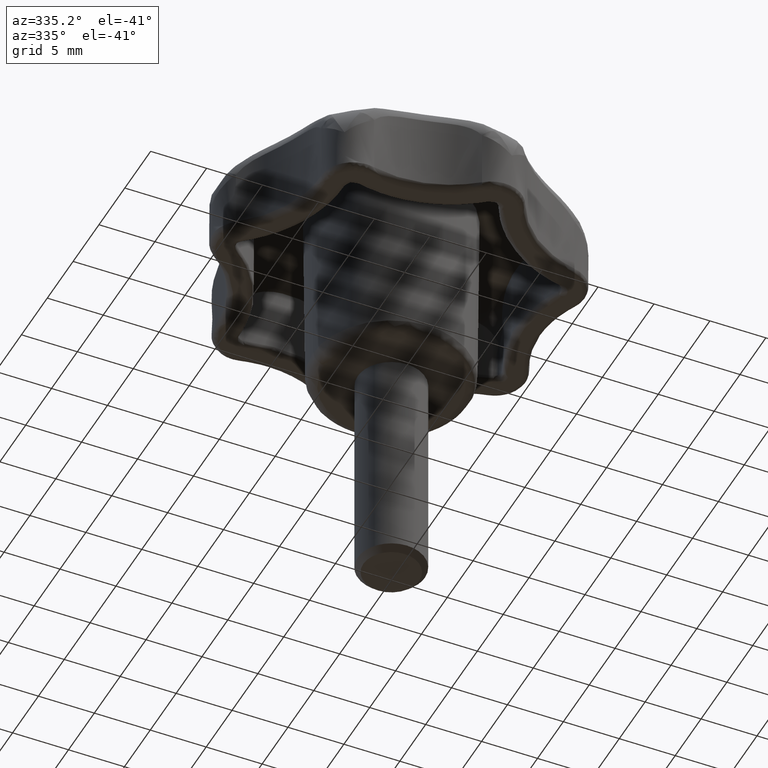
[diagram: clean part render]
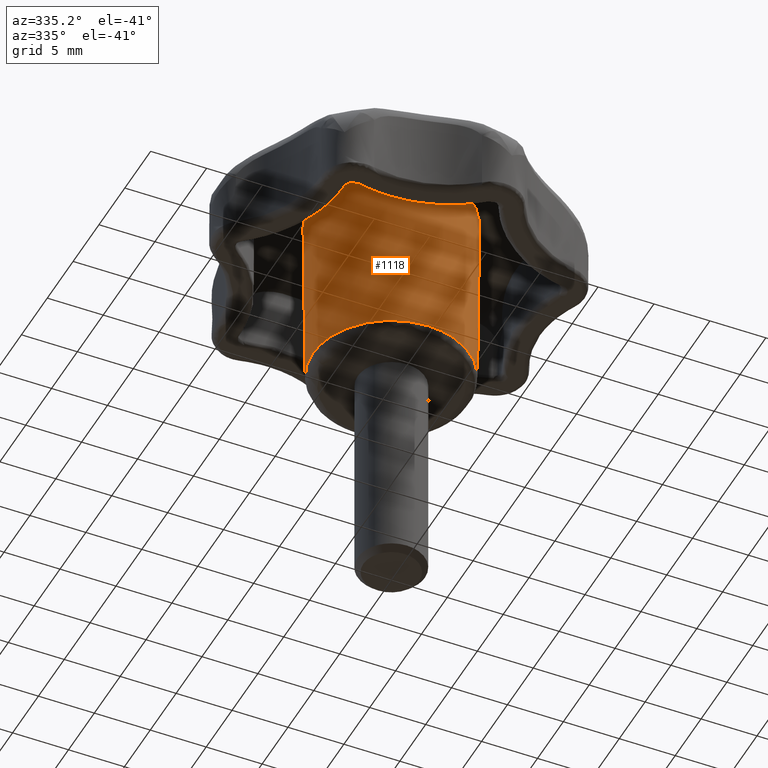
[diagram: same view with one face highlighted and labeled with its STEP entity id]
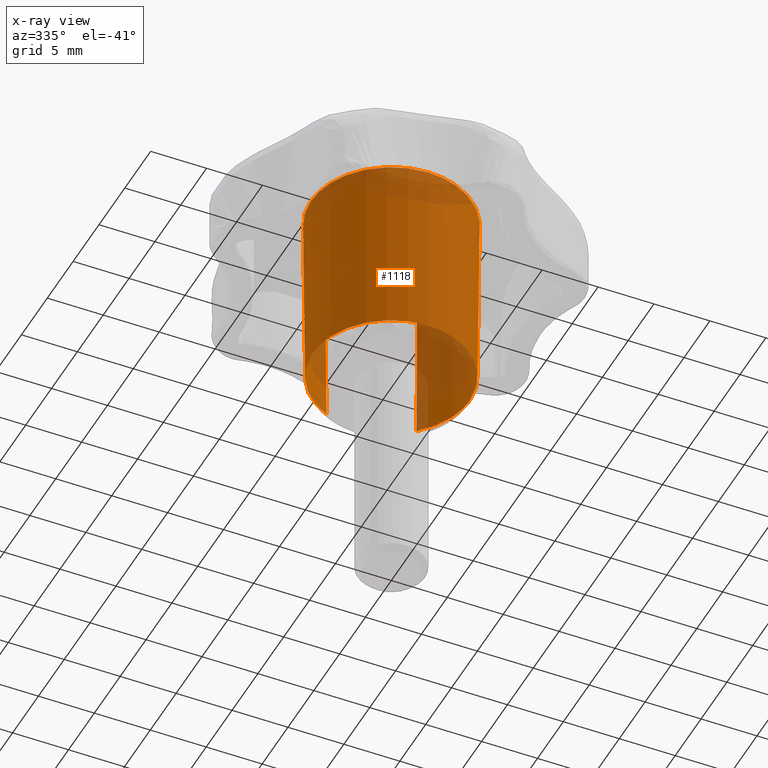
[diagram: x-ray of the same camera — body ghosted, the highlighted face saturated]
A machine part, auxiliary view. The second image highlights one B-rep face of the part: STEP entity #1118.
The next image is the same camera in x-ray: the body ghosted, the highlighted face saturated — about 23% of this face is hidden behind the body in this view.
In plain terms, the highlighted face is a freeform B-spline surface patch.
Its self-contained STEP definition (entity closure, byte-faithful):
#938=CARTESIAN_POINT('',(-2.835891660430175,6.406184398767138,0.581759733794244));
#939=CARTESIAN_POINT('',(-4.217562419687498,5.794545966318621,0.581759733794244));
#940=CARTESIAN_POINT('',(-5.224298550591673,4.667781562475971,0.581759733794244));
#941=CARTESIAN_POINT('',(-9.892080113067644,-0.556516988115702,0.581759733794244));
#942=CARTESIAN_POINT('',(-4.667781562475971,-5.224298550591673,0.581759733794244));
#943=CARTESIAN_POINT('',(0.556516988115702,-9.892080113067644,0.581759733794244));
#944=CARTESIAN_POINT('',(5.224298550591673,-4.667781562475971,0.581759733794244));
#945=CARTESIAN_POINT('',(9.892080113067644,0.556516988115702,0.581759733794244));
#946=CARTESIAN_POINT('',(4.667781562475971,5.224298550591673,0.581759733794244));
#947=CARTESIAN_POINT('',(-2.905338979154756,6.563063568714743,17.738098943506674));
#948=CARTESIAN_POINT('',(-4.320845068206033,5.936446902169648,17.738098943506667));
#949=CARTESIAN_POINT('',(-5.352234864809075,4.782089495472544,17.738098943506671));
#950=CARTESIAN_POINT('',(-10.134324360281619,-0.570145369336531,17.738098943506667));
#951=CARTESIAN_POINT('',(-4.782089495472544,-5.352234864809075,17.738098943506671));
#952=CARTESIAN_POINT('',(0.570145369336531,-10.134324360281619,17.738098943506667));
#953=CARTESIAN_POINT('',(5.352234864809075,-4.782089495472544,17.738098943506671));
#954=CARTESIAN_POINT('',(10.134324360281619,0.570145369336531,17.738098943506667));
#955=CARTESIAN_POINT('',(4.782089495472544,5.352234864809075,17.738098943506671));
#963=(BOUNDED_SURFACE()B_SPLINE_SURFACE(2,1,((#938,#947),(#939,#948),(#940,#949),(#941,#950),(#942,#951),(#943,#952),(#944,#953),(#945,#954),(#946,#955)),.UNSPECIFIED.,.F.,.F.,.U.)B_SPLINE_SURFACE_WITH_KNOTS((3,2,2,2,3),(2,2),(0.0,3.329724777904238,15.221598984705089,27.113473191505939,39.005347398306789),(0.0,17.157197005418968),.UNSPECIFIED.)GEOMETRIC_REPRESENTATION_ITEM()RATIONAL_B_SPLINE_SURFACE(((0.881905454174416,0.881905454174416),(0.917989898732233,0.917989898732233),(1.0,1.0),(0.707106781186548,0.707106781186548),(1.0,1.0),(0.707106781186548,0.707106781186548),(1.0,1.0),(0.707106781186548,0.707106781186548),(1.0,1.0)))REPRESENTATION_ITEM('')SURFACE());
#964=CARTESIAN_POINT('',(-7.173196524580950,0.0,17.319651645708799));
#965=VERTEX_POINT('',#964);
#966=CARTESIAN_POINT('',(-2.903645092692714,6.559237122461827,17.319651612084218));
#967=VERTEX_POINT('',#966);
#968=CARTESIAN_POINT('',(-7.173196524580950,0.0,17.319651645708799));
#969=CARTESIAN_POINT('',(-7.173206186523182,0.323365313048776,17.319651644051110));
#970=CARTESIAN_POINT('',(-7.126484246023797,1.013214422351497,17.319651640514842));
#971=CARTESIAN_POINT('',(-6.912785165294114,2.006685865994263,17.319651635421842));
#972=CARTESIAN_POINT('',(-6.506010957125447,3.100279846063437,17.319651629815901));
#973=CARTESIAN_POINT('',(-5.965060761528228,4.038719609199005,17.319651625005029));
#974=CARTESIAN_POINT('',(-5.285478489234446,4.877786995987638,17.319651620703858));
#975=CARTESIAN_POINT('',(-4.614518630148257,5.520482712152718,17.319651617409171));
#976=CARTESIAN_POINT('',(-3.810584446618372,6.104937040659963,17.319651614413122));
#977=CARTESIAN_POINT('',(-3.219052797580398,6.419629647580718,17.319651612799870));
#978=CARTESIAN_POINT('',(-2.903645092692714,6.559237122461827,17.319651612084218));
#979=B_SPLINE_CURVE_WITH_KNOTS('',3,(#968,#969,#970,#971,#972,#973,#974,#975,#976,#977,#978),.UNSPECIFIED.,.F.,.U.,(4,1,1,1,1,1,1,1,4),(0.000000014896131,0.970098521424851,2.069557071607963,3.039666844306906,4.462474315541855,5.303238674811934,6.273344766734683,7.243455749406371,8.278227493282936),.UNSPECIFIED.);
#980=EDGE_CURVE('',#965,#967,#979,.T.);
#981=ORIENTED_EDGE('',*,*,#980,.T.);
#982=CARTESIAN_POINT('',(-2.837544167652939,6.409917399598444,0.990000608527300));
#983=VERTEX_POINT('',#982);
#984=CARTESIAN_POINT('',(-2.837544167652939,6.409917399598444,0.990000608527300));
#985=CARTESIAN_POINT('',(-2.903645092692714,6.559237122461827,17.319651612084218));
#986=QUASI_UNIFORM_CURVE('',1,(#984,#985),.UNSPECIFIED.,.F.,.U.);
#987=EDGE_CURVE('',#983,#967,#986,.T.);
#988=ORIENTED_EDGE('',*,*,#987,.F.);
#989=CARTESIAN_POINT('',(-7.009900000000000,0.0,0.990000999999893));
#990=VERTEX_POINT('',#989);
#991=CARTESIAN_POINT('',(-7.009900000000000,0.0,0.990000999999893));
#992=CARTESIAN_POINT('',(-7.009943534231018,0.421342233384683,0.990000974269856));
#993=CARTESIAN_POINT('',(-6.943208365364920,1.158673236313285,0.990000929242763));
#994=CARTESIAN_POINT('',(-6.663410400773020,2.264040942734888,0.990000861738820));
#995=CARTESIAN_POINT('',(-6.250518950737315,3.237298333141068,0.990000802301195));
#996=CARTESIAN_POINT('',(-5.600859643973688,4.275937967395371,0.990000738868651));
#997=CARTESIAN_POINT('',(-4.805653051247512,5.155980356620826,0.990000685119771));
#998=CARTESIAN_POINT('',(-3.834240902073332,5.903102843739844,0.990000639486236));
#999=CARTESIAN_POINT('',(-3.184304942908419,6.256442115249044,0.990000617902803));
#1000=CARTESIAN_POINT('',(-2.837544167652939,6.409917399598444,0.990000608527300));
#1001=B_SPLINE_CURVE_WITH_KNOTS('',3,(#991,#992,#993,#994,#995,#996,#997,#998,#999,#1000),.UNSPECIFIED.,.F.,.U.,(4,1,1,1,1,1,1,4),(0.000000016162220,1.264022873488172,2.212049411980695,3.412880749823413,4.424092281010726,5.877725835976989,6.952156589494572,8.089775234093120),.UNSPECIFIED.);
#1002=EDGE_CURVE('',#990,#983,#1001,.T.);
#1003=ORIENTED_EDGE('',*,*,#1002,.F.);
#1004=CARTESIAN_POINT('',(-7.009346532137906,-0.088086683067751,0.990000999938502));
#1005=VERTEX_POINT('',#1004);
#1006=CARTESIAN_POINT('',(-7.009346532137906,-0.088086683067751,0.990000999938502));
#1007=CARTESIAN_POINT('',(-7.009900000000000,0.0,0.990000999999893));
#1008=QUASI_UNIFORM_CURVE('',1,(#1006,#1007),.UNSPECIFIED.,.F.,.U.);
#1009=EDGE_CURVE('',#1005,#990,#1008,.T.);
#1010=ORIENTED_EDGE('',*,*,#1009,.F.);
#1011=CARTESIAN_POINT('',(0.044011560081304,-7.009761835653135,0.990000999999893));
#1012=VERTEX_POINT('',#1011);
#1013=CARTESIAN_POINT('',(0.044011560081304,-7.009761835653135,0.990000999999893));
#1014=CARTESIAN_POINT('',(-0.327259516147825,-7.012118555084825,0.990000999998271));
#1015=CARTESIAN_POINT('',(-1.013018240262575,-6.961809875443648,0.990000999995025));
#1016=CARTESIAN_POINT('',(-1.990769810179260,-6.743333285383921,0.990000999989757));
#1017=CARTESIAN_POINT('',(-2.970697512445881,-6.380881706088863,0.990000999983856));
#1018=CARTESIAN_POINT('',(-3.833947858696139,-5.897866173226248,0.990000999977929));
#1019=CARTESIAN_POINT('',(-4.639982641624701,-5.280306060227638,0.990000999971682));
#1020=CARTESIAN_POINT('',(-5.269781020681241,-4.654665858341771,0.990000999966161));
#1021=CARTESIAN_POINT('',(-5.853122822753118,-3.894059717636087,0.990000999960265));
#1022=CARTESIAN_POINT('',(-6.353545875308731,-3.025877236812986,0.990000999954253));
#1023=CARTESIAN_POINT('',(-6.705954842517371,-2.117487215262767,0.990000999948728));
#1024=CARTESIAN_POINT('',(-6.943269781637847,-1.115486025520305,0.990000999943289));
#1025=CARTESIAN_POINT('',(-7.004533031734352,-0.473616830287401,0.990000999940200));
#1026=CARTESIAN_POINT('',(-7.009346532137906,-0.088086683067751,0.990000999938502));
#1027=B_SPLINE_CURVE_WITH_KNOTS('',3,(#1013,#1014,#1015,#1016,#1017,#1018,#1019,#1020,#1021,#1022,#1023,#1024,#1025,#1026),.UNSPECIFIED.,.F.,.U.,(4,1,1,1,1,1,1,1,1,1,1,4),(0.000000031240324,1.113831731728125,2.056320003634308,2.998809057157170,4.241180619405213,5.012304660595380,6.040439039017933,6.897245513999506,7.882576950302845,9.039262667068492,9.810388743024252,10.967065089115559),.UNSPECIFIED.);
#1028=EDGE_CURVE('',#1012,#1005,#1027,.T.);
#1029=ORIENTED_EDGE('',*,*,#1028,.F.);
#1030=CARTESIAN_POINT('',(7.009900000000000,0.0,0.990000999999893));
#1031=VERTEX_POINT('',#1030);
#1032=CARTESIAN_POINT('',(7.009900000000000,0.0,0.990000999999893));
#1033=CARTESIAN_POINT('',(7.009985120149969,-0.499808510791488,0.990001000002083));
#1034=CARTESIAN_POINT('',(6.910192776071818,-1.427974315679295,0.990001000005705));
#1035=CARTESIAN_POINT('',(6.483152912518270,-2.781921376152885,0.990001000009754));
#1036=CARTESIAN_POINT('',(5.889942713634015,-3.864811448001660,0.990001000011884));
#1037=CARTESIAN_POINT('',(5.212498895600441,-4.715845211747632,0.990001000012620));
#1038=CARTESIAN_POINT('',(4.503956187915340,-5.403200741511972,0.990001000012512));
#1039=CARTESIAN_POINT('',(3.633465740154701,-6.033386934691487,0.990001000011428));
#1040=CARTESIAN_POINT('',(2.695249096121297,-6.496464130980861,0.990001000009337));
#1041=CARTESIAN_POINT('',(1.499778261747799,-6.889949251321434,0.990001000005765));
#1042=CARTESIAN_POINT('',(0.643787145650208,-7.006191831373418,0.990001000002565));
#1043=CARTESIAN_POINT('',(0.044011560081304,-7.009761835653135,0.990000999999893));
#1044=B_SPLINE_CURVE_WITH_KNOTS('',3,(#1032,#1033,#1034,#1035,#1036,#1037,#1038,#1039,#1040,#1041,#1042,#1043),.UNSPECIFIED.,.F.,.U.,(4,1,1,1,1,1,1,1,1,4),(0.000000031243275,1.499405598363675,2.784623344417470,4.241205871929371,5.183682938024848,6.040475004124912,7.197172214472864,8.396710306964351,9.167842803276084,10.967130388001751),.UNSPECIFIED.);
#1045=EDGE_CURVE('',#1031,#1012,#1044,.T.);
#1046=ORIENTED_EDGE('',*,*,#1045,.F.);
#1047=CARTESIAN_POINT('',(4.670501578464534,5.227342822285378,0.990000751596052));
#1048=VERTEX_POINT('',#1047);
#1049=CARTESIAN_POINT('',(4.670501578464534,5.227342822285378,0.990000751596052));
#1050=CARTESIAN_POINT('',(4.911098390427255,5.012394656389010,0.990000761812351));
#1051=CARTESIAN_POINT('',(5.362526251573594,4.549188655823717,0.990000783827228));
#1052=CARTESIAN_POINT('',(5.992434475149363,3.693419508434316,0.990000824496782));
#1053=CARTESIAN_POINT('',(6.445351452988191,2.816330416844074,0.990000866176948));
#1054=CARTESIAN_POINT('',(6.774414129780408,1.872016901200394,0.990000911049566));
#1055=CARTESIAN_POINT('',(6.964219160002633,0.983251022386661,0.990000953281006));
#1056=CARTESIAN_POINT('',(7.009911150948082,0.322628874268362,0.990000984670480));
#1057=CARTESIAN_POINT('',(7.009900000000000,0.0,0.990000999999893));
#1058=B_SPLINE_CURVE_WITH_KNOTS('',3,(#1049,#1050,#1051,#1052,#1053,#1054,#1055,#1056,#1057),.UNSPECIFIED.,.F.,.U.,(4,1,1,1,1,1,4),(9.877584E-009,0.967887202464379,1.935783267727028,3.180213103294051,3.917650584733007,4.931639581828078,5.899526774414989),.UNSPECIFIED.);
#1059=EDGE_CURVE('',#1048,#1031,#1058,.T.);
#1060=ORIENTED_EDGE('',*,*,#1059,.F.);
#1061=CARTESIAN_POINT('',(4.779301596235741,5.349114615891891,17.319651373754962));
#1062=VERTEX_POINT('',#1061);
#1063=CARTESIAN_POINT('',(4.670501578464534,5.227342822285378,0.990000751596052));
#1064=CARTESIAN_POINT('',(4.779301596235741,5.349114615891891,17.319651373754962));
#1065=QUASI_UNIFORM_CURVE('',1,(#1063,#1064),.UNSPECIFIED.,.F.,.U.);
#1066=EDGE_CURVE('',#1048,#1062,#1065,.T.);
#1067=ORIENTED_EDGE('',*,*,#1066,.T.);
#1068=CARTESIAN_POINT('',(7.173196524580950,0.0,17.319651645708799));
#1069=VERTEX_POINT('',#1068);
#1070=CARTESIAN_POINT('',(4.779301596235741,5.349114615891891,17.319651373754962));
#1071=CARTESIAN_POINT('',(5.248386597249339,4.930267070044406,17.319651395049569));
#1072=CARTESIAN_POINT('',(5.961423164525225,4.100353875714014,17.319651437243088));
#1073=CARTESIAN_POINT('',(6.592483420634004,2.897687341195335,17.319651498387749));
#1074=CARTESIAN_POINT('',(6.936342819121783,1.900324592430017,17.319651549094530));
#1075=CARTESIAN_POINT('',(7.127533888685960,0.990433008924669,17.319651595354490));
#1076=CARTESIAN_POINT('',(7.173210877725738,0.330144801060058,17.319651628923801));
#1077=CARTESIAN_POINT('',(7.173196524580950,0.0,17.319651645708799));
#1078=B_SPLINE_CURVE_WITH_KNOTS('',3,(#1070,#1071,#1072,#1073,#1074,#1075,#1076,#1077),.UNSPECIFIED.,.F.,.U.,(4,1,1,1,1,4),(0.000000010104854,1.886551326405721,3.254296646488233,4.056079518749840,5.046522868624561,6.036957139130828),.UNSPECIFIED.);
#1079=EDGE_CURVE('',#1062,#1069,#1078,.T.);
#1080=ORIENTED_EDGE('',*,*,#1079,.T.);
#1081=CARTESIAN_POINT('',(-0.000000724048525,-7.173196524580915,17.319651645708799));
#1082=VERTEX_POINT('',#1081);
#1083=CARTESIAN_POINT('',(7.173196524580950,0.0,17.319651645708799));
#1084=CARTESIAN_POINT('',(7.173212868682214,-0.352109303222596,17.319651645708799));
#1085=CARTESIAN_POINT('',(7.116920561829329,-1.115019576278257,17.319651645708799));
#1086=CARTESIAN_POINT('',(6.837970156415250,-2.289857227742561,17.319651645708841));
#1087=CARTESIAN_POINT('',(6.361017445532857,-3.383844225337955,17.319651645708820));
#1088=CARTESIAN_POINT('',(5.770265948080993,-4.297963540856200,17.319651645708770));
#1089=CARTESIAN_POINT('',(5.177003785331630,-4.989984523146167,17.319651645708930));
#1090=CARTESIAN_POINT('',(4.462464303001467,-5.645670086085691,17.319651645708770));
#1091=CARTESIAN_POINT('',(3.662955618117113,-6.197804863908356,17.319651645708809));
#1092=CARTESIAN_POINT('',(2.752668032352423,-6.645519364138251,17.319651645709062));
#1093=CARTESIAN_POINT('',(1.569750268185925,-7.048516700330784,17.319651645708440));
#1094=CARTESIAN_POINT('',(0.630890606977994,-7.173382448991680,17.319651645709040));
#1095=CARTESIAN_POINT('',(-0.000000724048525,-7.173196524580915,17.319651645708799));
#1096=B_SPLINE_CURVE_WITH_KNOTS('',3,(#1083,#1084,#1085,#1086,#1087,#1088,#1089,#1090,#1091,#1092,#1093,#1094,#1095),.UNSPECIFIED.,.F.,.U.,(4,1,1,1,1,1,1,1,1,1,4),(0.000000031530856,1.056329045891822,2.288740554210012,3.609172213757978,4.621505195531580,5.545806321229685,6.338044351256536,7.526431141414331,8.450736634560414,9.375042127880111,11.267648835919321),.UNSPECIFIED.);
#1097=EDGE_CURVE('',#1069,#1082,#1096,.T.);
#1098=ORIENTED_EDGE('',*,*,#1097,.T.);
#1099=CARTESIAN_POINT('',(-0.000000724048525,-7.173196524580915,17.319651645708799));
#1100=CARTESIAN_POINT('',(-0.454816702320354,-7.173254625133228,17.319651645708809));
#1101=CARTESIAN_POINT('',(-1.173686283037349,-7.104574357037699,17.319651645708820));
#1102=CARTESIAN_POINT('',(-2.242701378571660,-6.836812287837717,17.319651645708792));
#1103=CARTESIAN_POINT('',(-3.226661826182176,-6.443348593097778,17.319651645708820));
#1104=CARTESIAN_POINT('',(-4.107525571790508,-5.907980649096958,17.319651645708799));
#1105=CARTESIAN_POINT('',(-4.894934751832972,-5.269805067479690,17.319651645708831));
#1106=CARTESIAN_POINT('',(-5.475126577314835,-4.664139606503721,17.319651645708799));
#1107=CARTESIAN_POINT('',(-6.070153002959913,-3.861852603378608,17.319651645708831));
#1108=CARTESIAN_POINT('',(-6.526997698789070,-3.037826712779052,17.319651645708721));
#1109=CARTESIAN_POINT('',(-6.883344989818339,-2.088034399834786,17.319651645708799));
#1110=CARTESIAN_POINT('',(-7.114707399015296,-1.100341863185514,17.319651645708849));
#1111=CARTESIAN_POINT('',(-7.173228142333840,-0.396125596629157,17.319651645708792));
#1112=CARTESIAN_POINT('',(-7.173196524580950,0.0,17.319651645708799));
#1113=B_SPLINE_CURVE_WITH_KNOTS('',3,(#1099,#1100,#1101,#1102,#1103,#1104,#1105,#1106,#1107,#1108,#1109,#1110,#1111,#1112),.UNSPECIFIED.,.F.,.U.,(4,1,1,1,1,1,1,1,1,1,1,4),(0.000000031596997,1.364432357439318,2.156693819560443,3.301070071266686,4.533479165761946,5.237707009202017,6.338043891690655,7.042273864207878,8.230663656324941,9.154966122032700,10.079274664379950,11.267648019746620),.UNSPECIFIED.);
#1114=EDGE_CURVE('',#1082,#965,#1113,.T.);
#1115=ORIENTED_EDGE('',*,*,#1114,.T.);
#1116=EDGE_LOOP('',(#981,#988,#1003,#1010,#1029,#1046,#1060,#1067,#1080,#1098,#1115));
#1117=FACE_OUTER_BOUND('',#1116,.T.);
#1118=ADVANCED_FACE('',(#1117),#963,.T.);